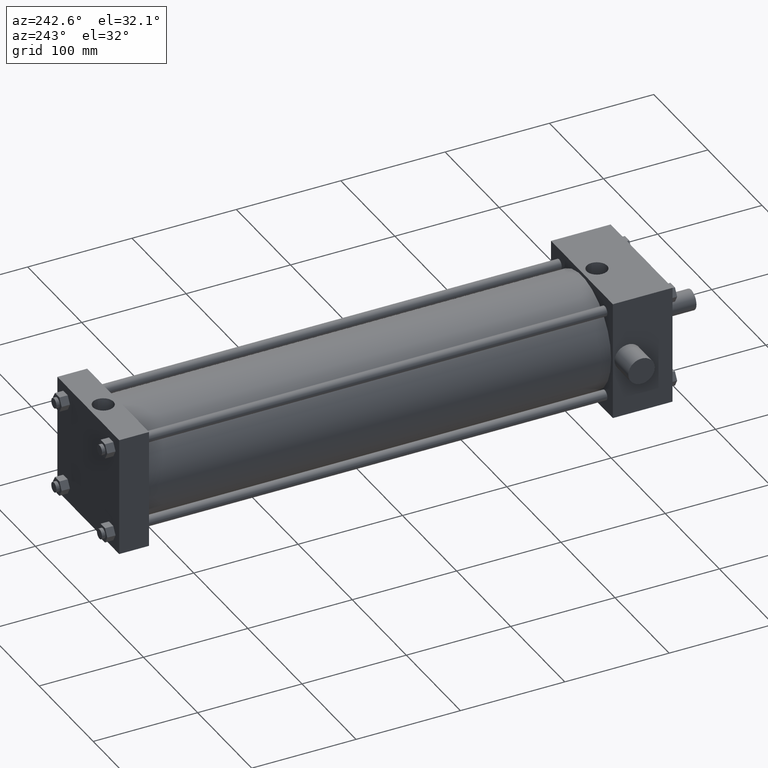
[diagram: clean part render]
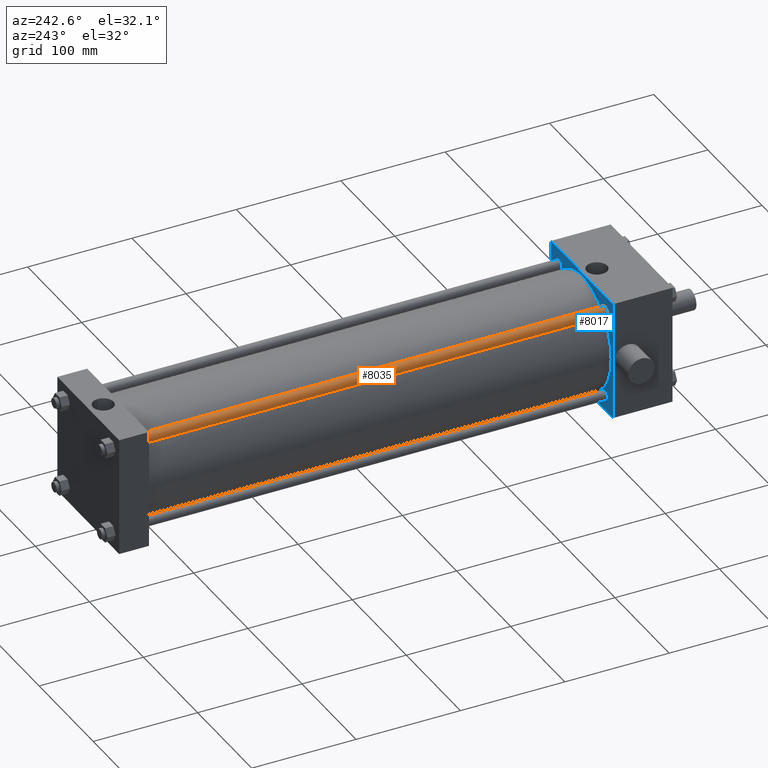
[diagram: same view with the hole feature highlighted: cylindrical wall and planar end face, labeled with their STEP entity ids]
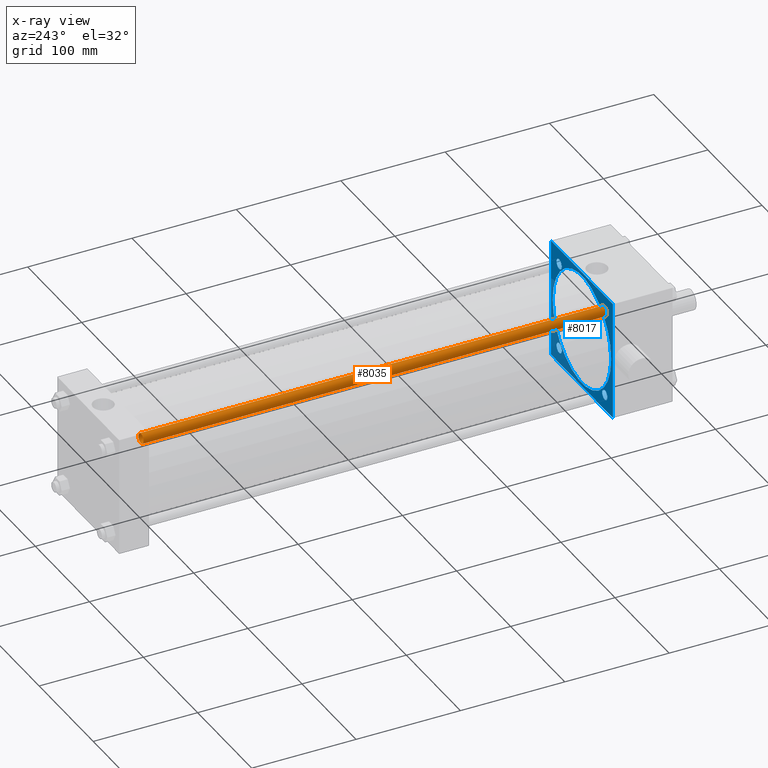
[diagram: x-ray of the same camera — body ghosted, the hole faces saturated]
A machine part, auxiliary view. The highlighted faces form one hole feature of diameter 9.525 mm: the cylindrical wall (entity #8035, orange) and its adjacent planar end face (entity #8017, blue) — they share a circular edge in the B-rep.
The next image is the same camera in x-ray (body ghosted, the hole faces saturated) — the bore reads through the body.
Wall:
#509=EDGE_CURVE('',#515,#515,#510,.T.);
#510=CIRCLE('',#511,4.762500000E+000);
#511=AXIS2_PLACEMENT_3D('',#512,#513,#514);
#512=CARTESIAN_POINT('',(-4.216400000E+001,7.620000000E+001,4.216400000E+001));
#513=DIRECTION('',(0.0E+000,1.0E+000,0.0E+000));
#514=DIRECTION('',(1.0E+000,0.0E+000,0.0E+000));
#515=VERTEX_POINT('',#516);
#516=CARTESIAN_POINT('',(-3.740150000E+001,7.620000000E+001,4.216400000E+001));
#2397=FACE_OUTER_BOUND('',#2399,.T.);
#2398=FACE_BOUND('',#2400,.T.);
#2399=EDGE_LOOP('',(#2401));
#2400=EDGE_LOOP('',(#2402));
#2401=ORIENTED_EDGE('',*,*,#2456,.F.);
#2402=ORIENTED_EDGE('',*,*,#509,.T.);
#2403=CYLINDRICAL_SURFACE('',#2404,4.762500000E+000);
#2404=AXIS2_PLACEMENT_3D('',#2405,#2406,#2407);
#2405=CARTESIAN_POINT('',(-4.216400000E+001,5.207000000E+002,4.216400000E+001));
#2406=DIRECTION('',(0.0E+000,-1.0E+000,0.0E+000));
#2407=DIRECTION('',(0.0E+000,0.0E+000,-1.0E+000));
#2456=EDGE_CURVE('',#2462,#2462,#2457,.T.);
#2457=CIRCLE('',#2458,4.762500000E+000);
#2458=AXIS2_PLACEMENT_3D('',#2459,#2460,#2461);
#2459=CARTESIAN_POINT('',(-4.216400000E+001,5.207000000E+002,4.216400000E+001));
#2460=DIRECTION('',(0.0E+000,1.0E+000,0.0E+000));
#2461=DIRECTION('',(1.0E+000,0.0E+000,0.0E+000));
#2462=VERTEX_POINT('',#2463);
#2463=CARTESIAN_POINT('',(-3.740150000E+001,5.207000000E+002,4.216400000E+001));
#8035=ADVANCED_FACE('',(#2397,#2398),#2403,.T.);
End face:
#455=FACE_OUTER_BOUND('',#461,.T.);
#456=FACE_BOUND('',#462,.T.);
#457=FACE_BOUND('',#463,.T.);
#458=FACE_BOUND('',#464,.T.);
#459=FACE_BOUND('',#465,.T.);
#460=FACE_BOUND('',#466,.T.);
#461=EDGE_LOOP('',(#467));
#462=EDGE_LOOP('',(#476,#477,#478,#479));
#463=EDGE_LOOP('',(#508));
#464=EDGE_LOOP('',(#517));
#465=EDGE_LOOP('',(#526));
#466=EDGE_LOOP('',(#535));
#467=ORIENTED_EDGE('',*,*,#468,.F.);
#468=EDGE_CURVE('',#474,#474,#469,.T.);
#469=CIRCLE('',#470,5.397500000E+001);
#470=AXIS2_PLACEMENT_3D('',#471,#472,#473);
#471=CARTESIAN_POINT('',(0.000000000E+000,7.620000000E+001,0.000000000E+000));
#472=DIRECTION('',(0.0E+000,1.0E+000,0.0E+000));
#473=DIRECTION('',(1.0E+000,0.0E+000,0.0E+000));
#474=VERTEX_POINT('',#475);
#475=CARTESIAN_POINT('',(5.397500000E+001,7.620000000E+001,0.000000000E+000));
#476=ORIENTED_EDGE('',*,*,#480,.F.);
#477=ORIENTED_EDGE('',*,*,#489,.F.);
#478=ORIENTED_EDGE('',*,*,#496,.F.);
#479=ORIENTED_EDGE('',*,*,#503,.F.);
#480=EDGE_CURVE('',#485,#486,#481,.T.);
#481=LINE('',#482,#483);
#482=CARTESIAN_POINT('',(-5.715000000E+001,7.620000000E+001,-5.715000000E+001));
#483=VECTOR('',#484,1.0E+000);
#484=DIRECTION('',(1.0E+000,0.0E+000,0.0E+000));
#485=VERTEX_POINT('',#487);
#486=VERTEX_POINT('',#488);
#487=CARTESIAN_POINT('',(-5.715000000E+001,7.620000000E+001,-5.715000000E+001));
#488=CARTESIAN_POINT('',(5.715000000E+001,7.620000000E+001,-5.715000000E+001));
#489=EDGE_CURVE('',#494,#485,#490,.T.);
#490=LINE('',#491,#492);
#491=CARTESIAN_POINT('',(-5.715000000E+001,7.620000000E+001,5.715000000E+001));
#492=VECTOR('',#493,1.0E+000);
#493=DIRECTION('',(0.0E+000,0.0E+000,-1.0E+000));
#494=VERTEX_POINT('',#495);
#495=CARTESIAN_POINT('',(-5.715000000E+001,7.620000000E+001,5.715000000E+001));
#496=EDGE_CURVE('',#501,#494,#497,.T.);
#497=LINE('',#498,#499);
#498=CARTESIAN_POINT('',(5.715000000E+001,7.620000000E+001,5.715000000E+001));
#499=VECTOR('',#500,1.0E+000);
#500=DIRECTION('',(-1.0E+000,0.0E+000,0.0E+000));
#501=VERTEX_POINT('',#502);
#502=CARTESIAN_POINT('',(5.715000000E+001,7.620000000E+001,5.715000000E+001));
#503=EDGE_CURVE('',#486,#501,#504,.T.);
#504=LINE('',#505,#506);
#505=CARTESIAN_POINT('',(5.715000000E+001,7.620000000E+001,-5.715000000E+001));
#506=VECTOR('',#507,1.0E+000);
#507=DIRECTION('',(0.0E+000,0.0E+000,1.0E+000));
#508=ORIENTED_EDGE('',*,*,#509,.F.);
#509=EDGE_CURVE('',#515,#515,#510,.T.);
#510=CIRCLE('',#511,4.762500000E+000);
#511=AXIS2_PLACEMENT_3D('',#512,#513,#514);
#512=CARTESIAN_POINT('',(-4.216400000E+001,7.620000000E+001,4.216400000E+001));
#513=DIRECTION('',(0.0E+000,1.0E+000,0.0E+000));
#514=DIRECTION('',(1.0E+000,0.0E+000,0.0E+000));
#515=VERTEX_POINT('',#516);
#516=CARTESIAN_POINT('',(-3.740150000E+001,7.620000000E+001,4.216400000E+001));
#517=ORIENTED_EDGE('',*,*,#518,.F.);
#518=EDGE_CURVE('',#524,#524,#519,.T.);
#519=CIRCLE('',#520,4.762500000E+000);
#520=AXIS2_PLACEMENT_3D('',#521,#522,#523);
#521=CARTESIAN_POINT('',(-4.216400000E+001,7.620000000E+001,-4.216400000E+001));
#522=DIRECTION('',(0.0E+000,1.0E+000,0.0E+000));
#523=DIRECTION('',(1.0E+000,0.0E+000,0.0E+000));
#524=VERTEX_POINT('',#525);
#525=CARTESIAN_POINT('',(-3.740150000E+001,7.620000000E+001,-4.216400000E+001));
#526=ORIENTED_EDGE('',*,*,#527,.F.);
#527=EDGE_CURVE('',#533,#533,#528,.T.);
#528=CIRCLE('',#529,4.762500000E+000);
#529=AXIS2_PLACEMENT_3D('',#530,#531,#532);
#530=CARTESIAN_POINT('',(4.216400000E+001,7.620000000E+001,-4.216400000E+001));
#531=DIRECTION('',(0.0E+000,1.0E+000,0.0E+000));
#532=DIRECTION('',(1.0E+000,0.0E+000,0.0E+000));
#533=VERTEX_POINT('',#534);
#534=CARTESIAN_POINT('',(4.692650000E+001,7.620000000E+001,-4.216400000E+001));
#535=ORIENTED_EDGE('',*,*,#536,.T.);
#536=EDGE_CURVE('',#542,#542,#537,.T.);
#537=CIRCLE('',#538,4.762500000E+000);
#538=AXIS2_PLACEMENT_3D('',#539,#540,#541);
#539=CARTESIAN_POINT('',(4.216400000E+001,7.620000000E+001,4.216400000E+001));
#540=DIRECTION('',(0.0E+000,-1.0E+000,0.0E+000));
#541=DIRECTION('',(-1.0E+000,0.0E+000,0.0E+000));
#542=VERTEX_POINT('',#543);
#543=CARTESIAN_POINT('',(3.740150000E+001,7.620000000E+001,4.216400000E+001));
#544=PLANE('',#545);
#545=AXIS2_PLACEMENT_3D('',#546,#547,#548);
#546=CARTESIAN_POINT('',(-5.715000000E+001,7.620000000E+001,-5.715000000E+001));
#547=DIRECTION('',(0.0E+000,1.0E+000,0.0E+000));
#548=DIRECTION('',(0.0E+000,0.0E+000,1.0E+000));
#8017=ADVANCED_FACE('',(#455,#456,#457,#458,#459,#460),#544,.T.);